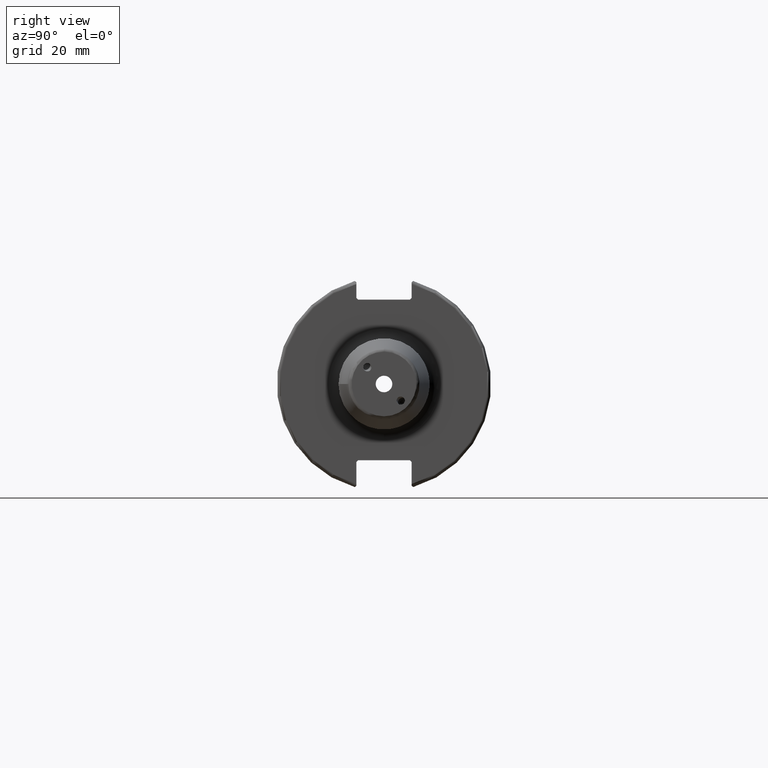
[diagram: clean part render]
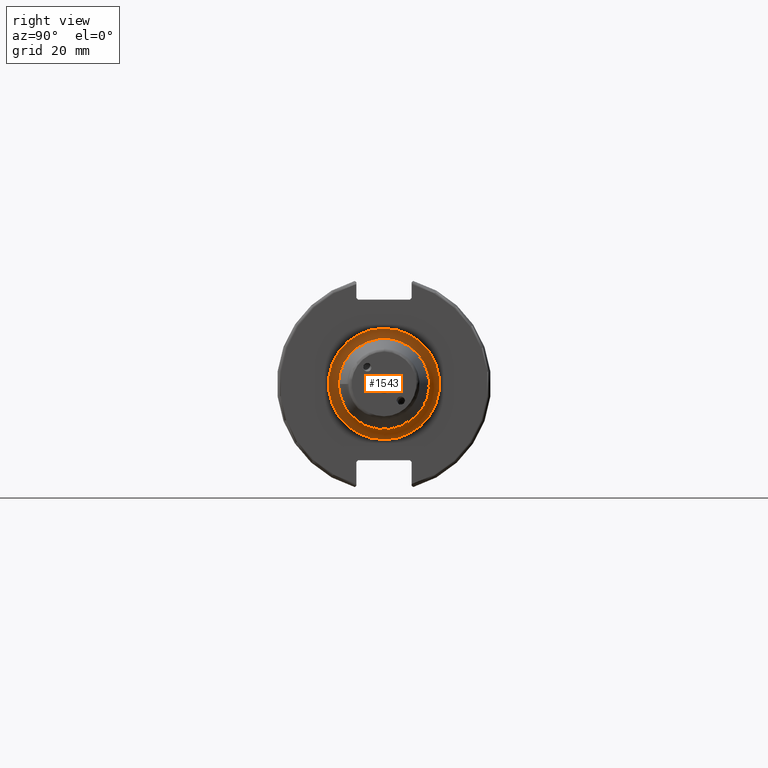
[diagram: same view with one face highlighted and labeled with its STEP entity id]
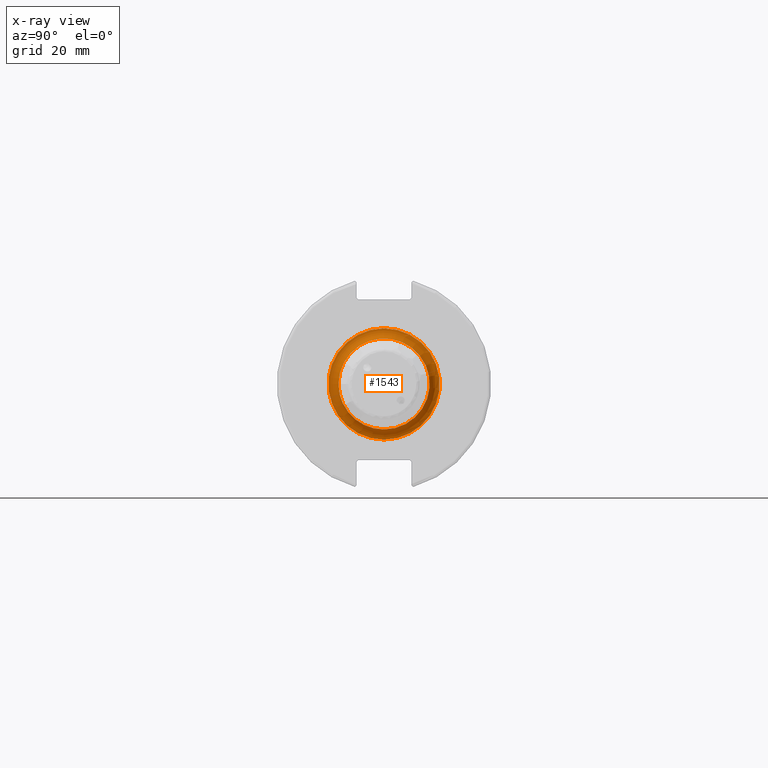
[diagram: x-ray of the same camera — body ghosted, the highlighted face saturated]
A machine part, right view. The second image highlights one B-rep face of the part: STEP entity #1543.
The next image is the same camera in x-ray: the body ghosted, the highlighted face saturated — about 1% of this face is hidden behind the body in this view.
In plain terms, the highlighted toroidal blend (fillet) surface has major radius 16.5 mm and minor (blend) radius 3 mm.
Its self-contained STEP definition (entity closure, byte-faithful):
#117=TOROIDAL_SURFACE('',#1667,16.5,3.);
#182=FACE_OUTER_BOUND('',#276,.T.);
#276=EDGE_LOOP('',(#1071,#1072,#1073,#1074,#1075));
#579=CIRCLE('',#1668,13.5);
#580=CIRCLE('',#1669,3.);
#581=CIRCLE('',#1670,16.5);
#582=CIRCLE('',#1671,13.5);
#657=VERTEX_POINT('',#2343);
#658=VERTEX_POINT('',#2344);
#659=VERTEX_POINT('',#2346);
#819=EDGE_CURVE('',#657,#658,#579,.T.);
#820=EDGE_CURVE('',#658,#659,#580,.T.);
#821=EDGE_CURVE('',#659,#659,#581,.T.);
#822=EDGE_CURVE('',#658,#657,#582,.T.);
#1071=ORIENTED_EDGE('',*,*,#819,.T.);
#1072=ORIENTED_EDGE('',*,*,#820,.T.);
#1073=ORIENTED_EDGE('',*,*,#821,.T.);
#1074=ORIENTED_EDGE('',*,*,#820,.F.);
#1075=ORIENTED_EDGE('',*,*,#822,.T.);
#1543=ADVANCED_FACE('',(#182),#117,.F.);
#1667=AXIS2_PLACEMENT_3D('',#2342,#1877,#1878);
#1668=AXIS2_PLACEMENT_3D('',#2345,#1879,#1880);
#1669=AXIS2_PLACEMENT_3D('',#2347,#1881,#1882);
#1670=AXIS2_PLACEMENT_3D('',#2348,#1883,#1884);
#1671=AXIS2_PLACEMENT_3D('',#2349,#1885,#1886);
#1877=DIRECTION('center_axis',(-1.,0.,0.));
#1878=DIRECTION('ref_axis',(0.,0.,1.));
#1879=DIRECTION('center_axis',(-1.,0.,0.));
#1880=DIRECTION('ref_axis',(0.,-1.,-1.22464679914735E-16));
#1881=DIRECTION('center_axis',(0.,-1.,1.22464679914735E-16));
#1882=DIRECTION('ref_axis',(0.,-1.22464679914735E-16,-1.));
#1883=DIRECTION('center_axis',(1.,0.,0.));
#1884=DIRECTION('ref_axis',(0.,-1.,-1.22464679914735E-16));
#1885=DIRECTION('center_axis',(-1.,0.,0.));
#1886=DIRECTION('ref_axis',(0.,-1.,-1.22464679914735E-16));
#2342=CARTESIAN_POINT('Origin',(22.05,0.,0.));
#2343=CARTESIAN_POINT('',(22.05,-13.5,-1.65327317884893E-15));
#2344=CARTESIAN_POINT('',(22.05,-1.65327317884893E-15,-13.5));
#2345=CARTESIAN_POINT('Origin',(22.05,0.,0.));
#2346=CARTESIAN_POINT('',(19.05,-2.02066721859313E-15,-16.5));
#2347=CARTESIAN_POINT('Origin',(22.05,-2.02066721859313E-15,-16.5));
#2348=CARTESIAN_POINT('Origin',(19.05,0.,0.));
#2349=CARTESIAN_POINT('Origin',(22.05,0.,0.));